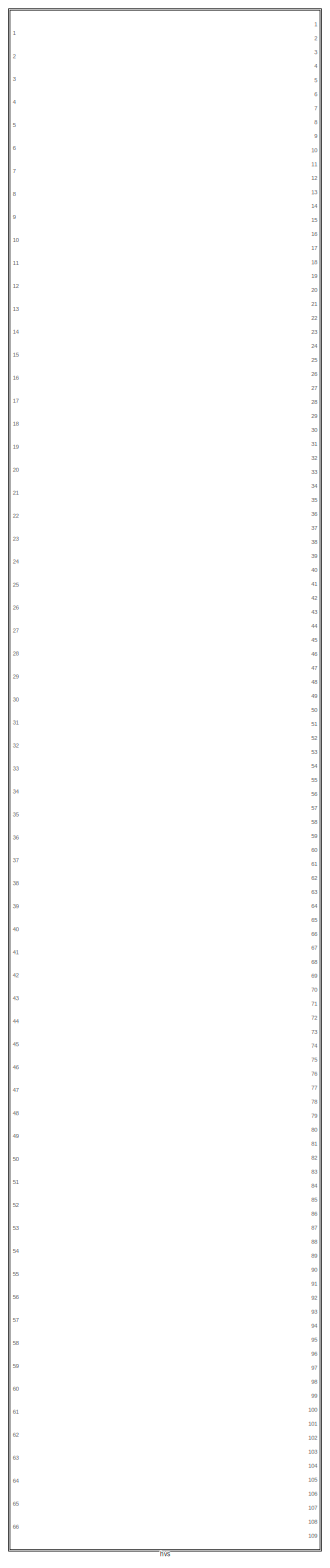
[diagram: root canvas - part 1/1, most of the canvas]
MODEL slx_6a93e0f20630
KIND library
CONFIG AbsTol = auto
CONFIG FixedStep = auto
CONFIG MaxStep = auto
CONFIG MinStep = auto
CONFIG RelTol = 1e-3
CONFIG SampleTimeConstraint = Unconstrained
CONFIG Solver = ode45
CONFIG SolverMode = Auto
CONFIG SolverName = ode45
CONFIG StartTime = 0.0
CONFIG StopTime = 10.0
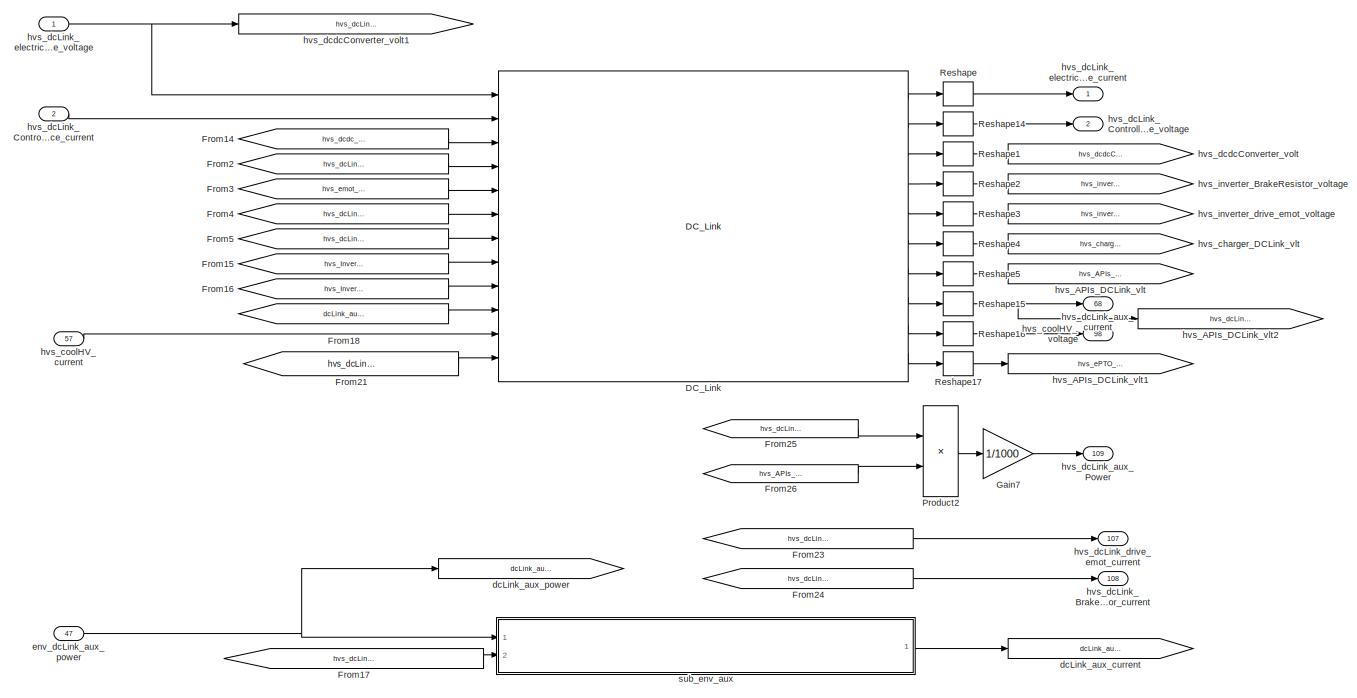
[diagram: hvs - part 1/8, full width, top band]
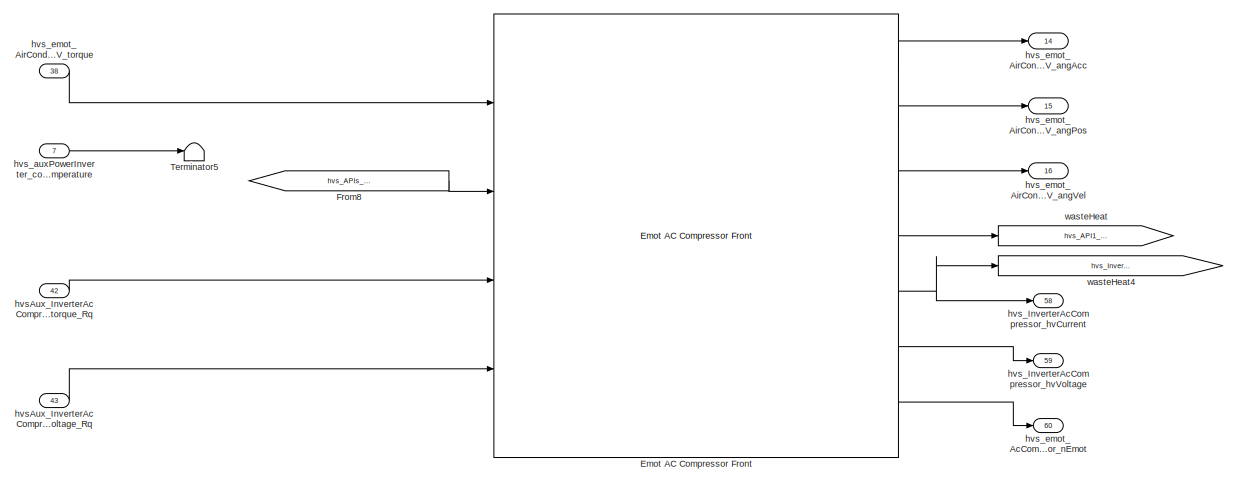
[diagram: hvs - part 2/8, full width, top band]
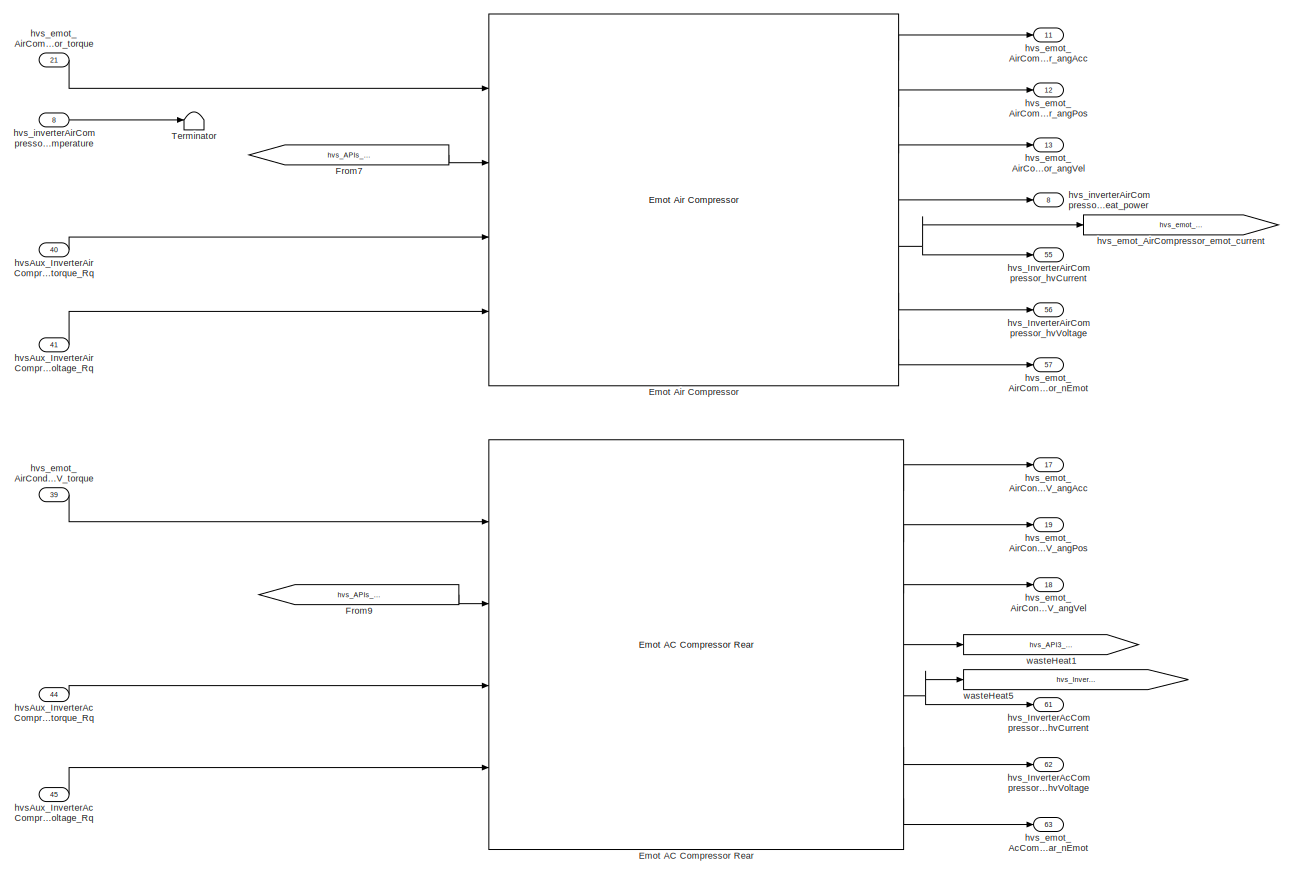
[diagram: hvs - part 3/8, full width, top band]
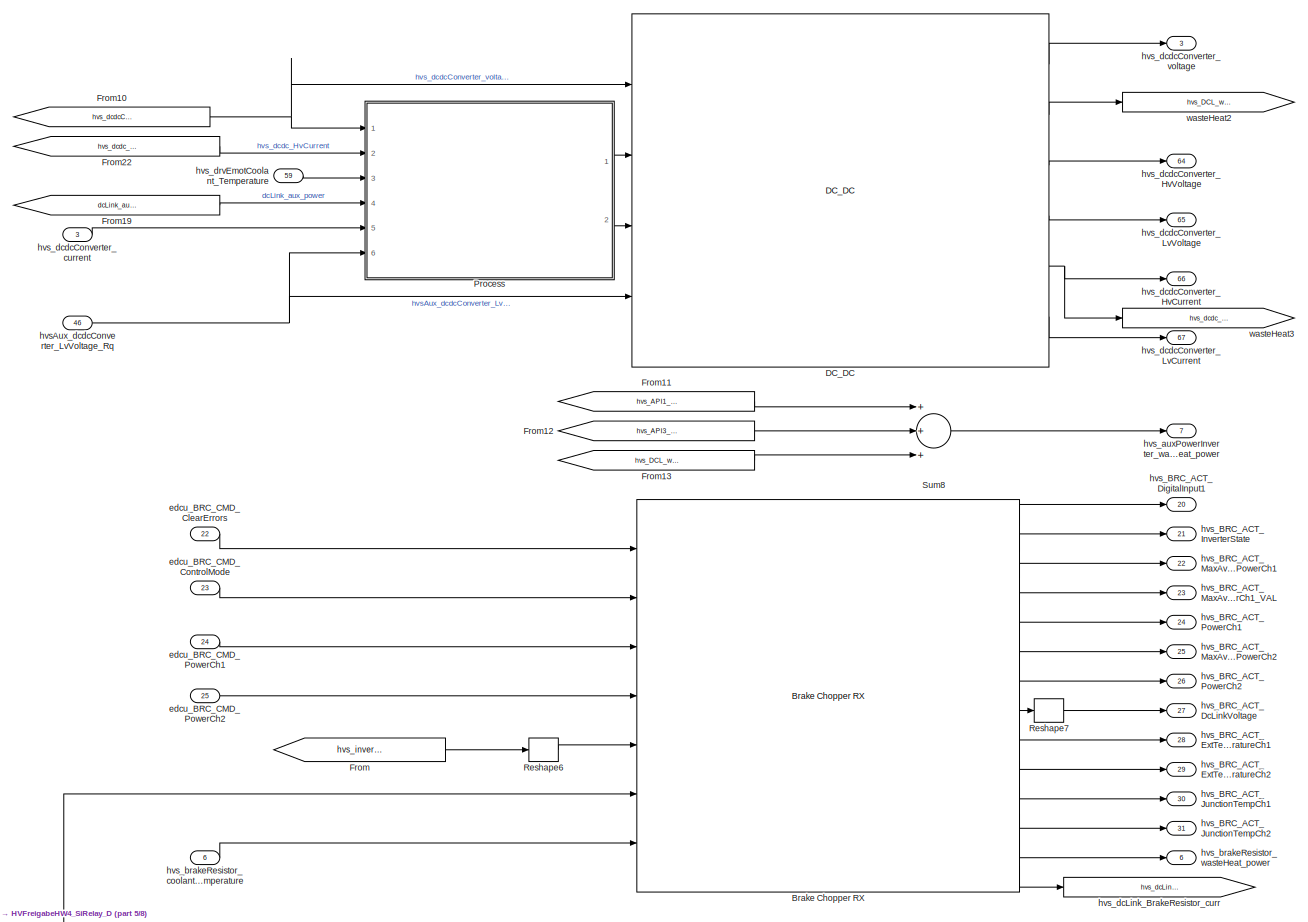
[diagram: hvs - part 4/8, full width, middle band]
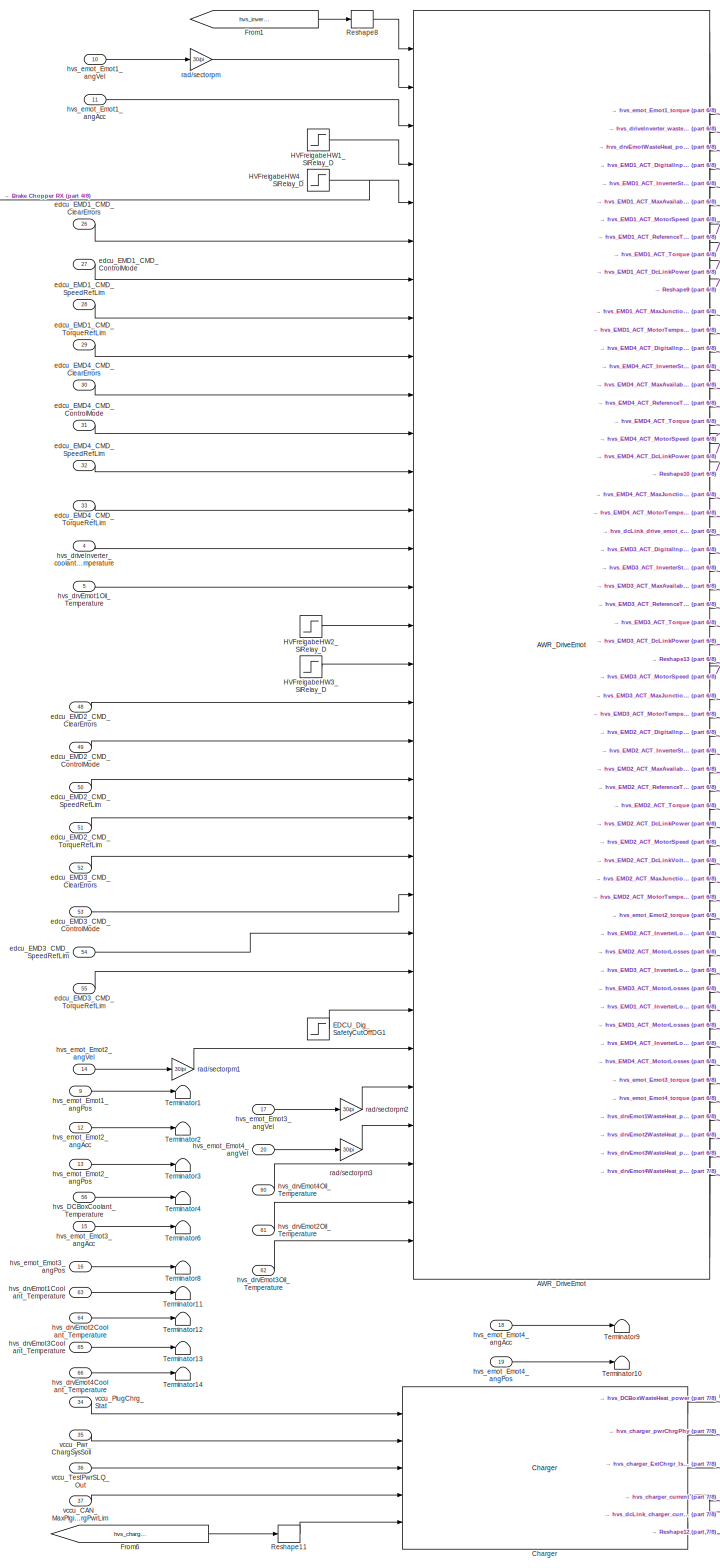
[diagram: hvs - part 5/8, bottom center region]
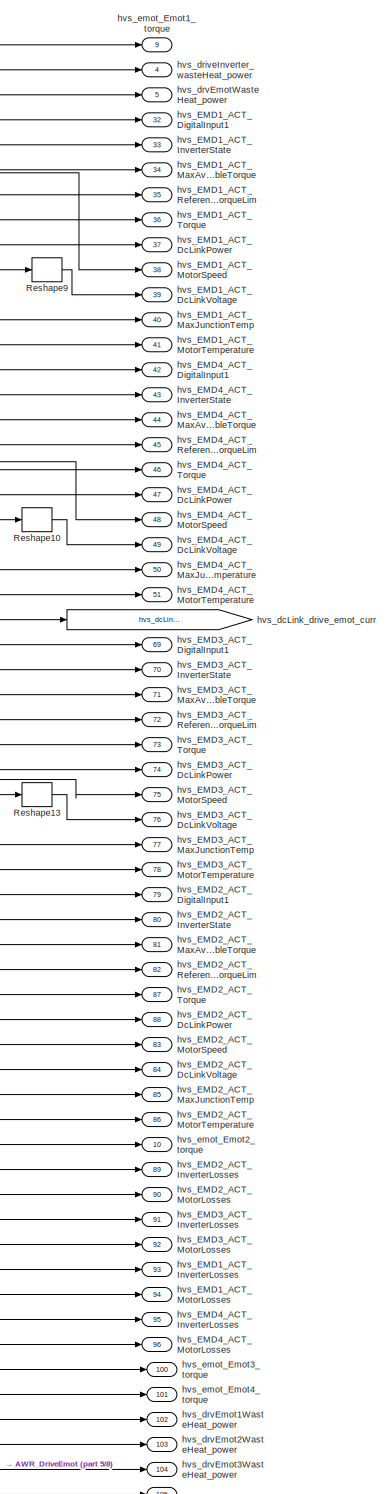
[diagram: hvs - part 6/8, bottom right region]
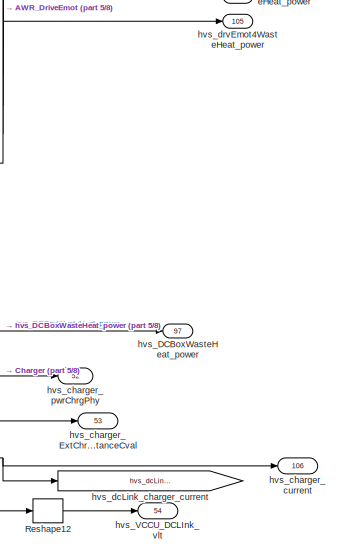
[diagram: hvs - part 7/8, bottom right region]
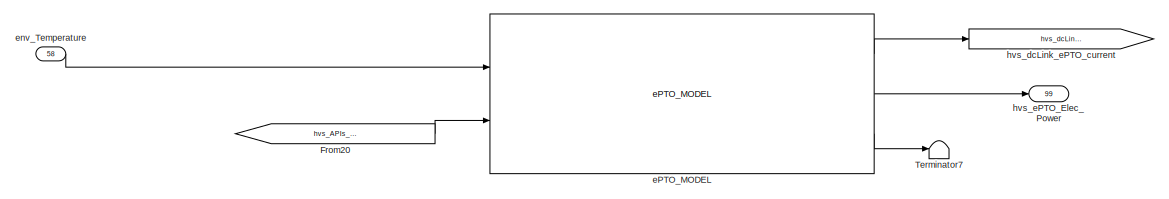
[diagram: hvs - part 8/8, full width, bottom band]
BLOCK [SubSystem] hvs
  Ports = [66, 109]
  RequestExecContextInheritance = off
  Variant = off
BLOCK [Reference] hvs/AWR_DriveEmot  REF=Energy_converter_Electrical_to_Mechanical/AWR_DriveEmot
  Ports = [32, 59]
  SourceBlock = Energy_converter_Electrical_to_Mechanical/AWR_DriveEmot
  SourceType = SubSystem
BLOCK [Reference] hvs/Brake Chopper RX  REF=Energy_converter_Electrical_to_Thermal/Brake Chopper RX
  Ports = [7, 14]
  SourceBlock = Energy_converter_Electrical_to_Thermal/Brake Chopper RX
  SourceType = SubSystem
BLOCK [Reference] hvs/Charger  REF=Electrical_charger/Charger
  Ports = [5, 5]
  SourceBlock = Electrical_charger/Charger
  SourceType = SubSystem
BLOCK [Reference] hvs/DC_DC  REF=Electrical_converter/DC_DC
  Ports = [4, 6]
  SourceBlock = Electrical_converter/DC_DC
  SourceType = SubSystem
BLOCK [Reference] hvs/DC_Link  REF=Powernet/DC_Link
  Ports = [12, 10]
  SourceBlock = Powernet/DC_Link
  SourceType = SubSystem
BLOCK [Step] hvs/EDCU_Dig_SafetyCutOffDG1
  Time = 0.812
BLOCK [Reference] hvs/Emot AC Compressor Front  REF=Energy_converter_Electrical_to_Mechanical/Emot AC Compressor Front
  Ports = [4, 7]
  SourceBlock = Energy_converter_Electrical_to_Mechanical/Emot AC Compressor Front
  SourceType = SubSystem
BLOCK [Reference] hvs/Emot AC Compressor Rear  REF=Energy_converter_Electrical_to_Mechanical/Emot AC Compressor Rear
  Ports = [4, 7]
  SourceBlock = Energy_converter_Electrical_to_Mechanical/Emot AC Compressor Rear
  SourceType = SubSystem
BLOCK [Reference] hvs/Emot Air Compressor  REF=Energy_converter_Electrical_to_Mechanical/Emot Air Compressor
  Ports = [4, 7]
  SourceBlock = Energy_converter_Electrical_to_Mechanical/Emot Air Compressor
  SourceType = SubSystem
BLOCK [From] hvs/From
  GotoTag = hvs_inverter_BrakeResistor_voltage
BLOCK [From] hvs/From1
  GotoTag = hvs_inverter_drive_emot_voltage
BLOCK [From] hvs/From10
  GotoTag = hvs_dcdcConverter_voltage
BLOCK [From] hvs/From11
  GotoTag = hvs_API1_wasteHeat_power
BLOCK [From] hvs/From12
  GotoTag = hvs_API3_wasteHeat_power
BLOCK [From] hvs/From13
  GotoTag = hvs_DCL_wasteHeat_power
BLOCK [From] hvs/From14
  GotoTag = hvs_dcdc_current
BLOCK [From] hvs/From15
  GotoTag = hvs_InverterAcCompressor_hvCurrent
BLOCK [From] hvs/From16
  GotoTag = hvs_InverterAcCompressorRear_hvCurrent
BLOCK [From] hvs/From17
  GotoTag = hvs_dcLink_electricalEnergyStorage_voltage
BLOCK [From] hvs/From18
  GotoTag = dcLink_aux_current
BLOCK [From] hvs/From19
  GotoTag = dcLink_aux_power
BLOCK [From] hvs/From2
  GotoTag = hvs_dcLink_drive_emot_current
BLOCK [From] hvs/From20
  GotoTag = hvs_APIs_DCLink_vlt
BLOCK [From] hvs/From21
  GotoTag = hvs_dcLink_ePTO_current
BLOCK [From] hvs/From22
  GotoTag = hvs_dcdc_current
BLOCK [From] hvs/From23
  GotoTag = hvs_dcLink_drive_emot_current
BLOCK [From] hvs/From24
  GotoTag = hvs_dcLink_BrakeResistor_current
BLOCK [From] hvs/From25
  GotoTag = hvs_dcLink_aux_current
BLOCK [From] hvs/From26
  GotoTag = hvs_APIs_DCLink_vlt
BLOCK [From] hvs/From3
  GotoTag = hvs_emot_AirCompressor_emot_current
BLOCK [From] hvs/From4
  GotoTag = hvs_dcLink_BrakeResistor_current
BLOCK [From] hvs/From5
  GotoTag = hvs_dcLink_charger_current
BLOCK [From] hvs/From6
  GotoTag = hvs_charger_DCLink_vlt
BLOCK [From] hvs/From7
  GotoTag = hvs_APIs_DCLink_vlt
BLOCK [From] hvs/From8
  GotoTag = hvs_APIs_DCLink_vlt
BLOCK [From] hvs/From9
  GotoTag = hvs_APIs_DCLink_vlt
BLOCK [Gain] hvs/Gain7
  Gain = 1/1000
  OutDataTypeStr = Inherit: Inherit via internal rule
  ParamDataTypeStr = Inherit: Inherit via internal rule
  SaturateOnIntegerOverflow = off
BLOCK [Step] hvs/HVFreigabeHW1_SiRelay_D
  Time = 5.502
BLOCK [Step] hvs/HVFreigabeHW2_SiRelay_D
  Time = 5.502
BLOCK [Step] hvs/HVFreigabeHW3_SiRelay_D
  Time = 5.502
BLOCK [Step] hvs/HVFreigabeHW4_SiRelay_D
  Time = 5.502
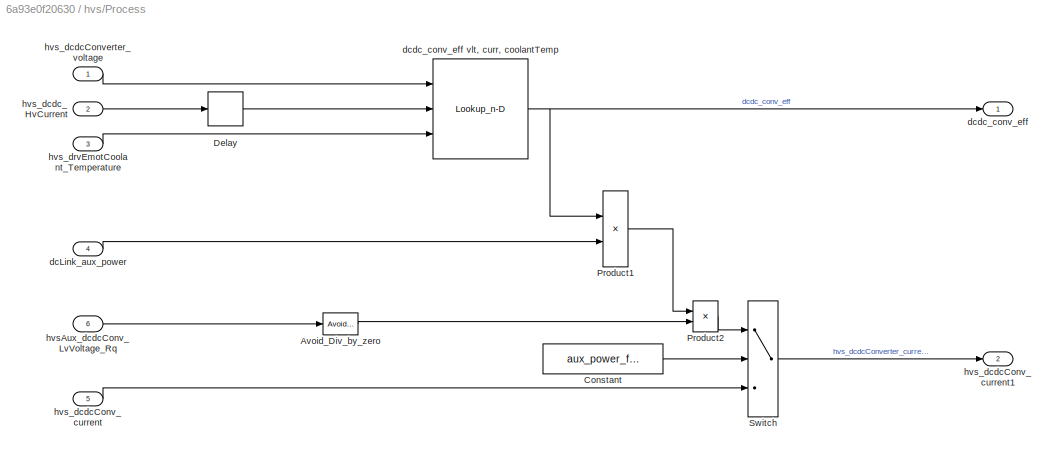
BLOCK [SubSystem] hvs/Process
  Ports = [6, 2]
  RequestExecContextInheritance = off
  Variant = off
BLOCK [Reference] hvs/Process/Avoid_Div_by_zero  REF=Electrical_converter/DC_DC/Avoid_Div_by_zero
  Ports = [1, 1]
  SourceBlock = Electrical_converter/DC_DC/Avoid_Div_by_zero
  SourceType = SubSystem
BLOCK [Constant] hvs/Process/Constant
  Value = aux_power_flag
BLOCK [Delay] hvs/Process/Delay
  DelayLength = 1
  InitialCondition = 0
  InputPortMap = u0
  Ports = [1, 1]
BLOCK [Product] hvs/Process/Product1
  InputSameDT = off
  Inputs = **
  OutDataTypeStr = Inherit: Inherit via internal rule
  Ports = [2, 1]
  SaturateOnIntegerOverflow = off
BLOCK [Product] hvs/Process/Product2
  InputSameDT = off
  Inputs = **
  OutDataTypeStr = Inherit: Inherit via internal rule
  Ports = [2, 1]
  SaturateOnIntegerOverflow = off
BLOCK [Switch] hvs/Process/Switch
  InputSameDT = off
  SaturateOnIntegerOverflow = off
  Threshold = 0.5
BLOCK [Inport] hvs/Process/dcLink_aux_power
  IconDisplay = Port number
  Port = 4
BLOCK [Outport] hvs/Process/dcdc_conv_eff
  IconDisplay = Port number
BLOCK [Lookup_n-D] hvs/Process/dcdc_conv_eff vlt, curr, coolantTemp
  BreakpointsForDimension1 = dcdc_effmap_vlt_1stD
  BreakpointsForDimension2 = dcdc_effmap_cur_2ndD
  BreakpointsForDimension3 = dcdc_effmap_cooltemp_3rdD
  ExtrapMethod = Clip
  NumberOfTableDimensions = 3
  Ports = [3, 1]
  RndMeth = Simplest
  Table = dcdc_effmap
BLOCK [Inport] hvs/Process/hvsAux_dcdcConv_LvVoltage_Rq
  IconDisplay = Port number
  Port = 6
BLOCK [Inport] hvs/Process/hvs_dcdcConv_current
  IconDisplay = Port number
  Port = 5
BLOCK [Outport] hvs/Process/hvs_dcdcConv_current1
  IconDisplay = Port number
  Port = 2
BLOCK [Inport] hvs/Process/hvs_dcdcConverter_voltage
  IconDisplay = Port number
BLOCK [Inport] hvs/Process/hvs_dcdc_HvCurrent
  IconDisplay = Port number
  Port = 2
BLOCK [Inport] hvs/Process/hvs_drvEmotCoolant_Temperature
  IconDisplay = Port number
  Port = 3
BLOCK [Product] hvs/Product2
  InputSameDT = off
  Inputs = **
  OutDataTypeStr = Inherit: Inherit via internal rule
  Ports = [2, 1]
  SaturateOnIntegerOverflow = off
BLOCK [Reshape] hvs/Reshape
  Ports = [1, 1]
BLOCK [Reshape] hvs/Reshape1
  Ports = [1, 1]
BLOCK [Reshape] hvs/Reshape10
  Ports = [1, 1]
BLOCK [Reshape] hvs/Reshape11
  Ports = [1, 1]
BLOCK [Reshape] hvs/Reshape12
  Ports = [1, 1]
BLOCK [Reshape] hvs/Reshape13
  Ports = [1, 1]
BLOCK [Reshape] hvs/Reshape14
  Ports = [1, 1]
BLOCK [Reshape] hvs/Reshape15
  Ports = [1, 1]
BLOCK [Reshape] hvs/Reshape16
  Ports = [1, 1]
BLOCK [Reshape] hvs/Reshape17
  Ports = [1, 1]
BLOCK [Reshape] hvs/Reshape2
  Ports = [1, 1]
BLOCK [Reshape] hvs/Reshape3
  Ports = [1, 1]
BLOCK [Reshape] hvs/Reshape4
  Ports = [1, 1]
BLOCK [Reshape] hvs/Reshape5
  Ports = [1, 1]
BLOCK [Reshape] hvs/Reshape6
  Ports = [1, 1]
BLOCK [Reshape] hvs/Reshape7
  Ports = [1, 1]
BLOCK [Reshape] hvs/Reshape8
  Ports = [1, 1]
BLOCK [Reshape] hvs/Reshape9
  Ports = [1, 1]
BLOCK [Sum] hvs/Sum8
  Inputs = +++
  Ports = [3, 1]
BLOCK [Terminator] hvs/Terminator
BLOCK [Terminator] hvs/Terminator1
BLOCK [Terminator] hvs/Terminator10
BLOCK [Terminator] hvs/Terminator11
BLOCK [Terminator] hvs/Terminator12
BLOCK [Terminator] hvs/Terminator13
BLOCK [Terminator] hvs/Terminator14
BLOCK [Terminator] hvs/Terminator2
BLOCK [Terminator] hvs/Terminator3
BLOCK [Terminator] hvs/Terminator4
BLOCK [Terminator] hvs/Terminator5
BLOCK [Terminator] hvs/Terminator6
BLOCK [Terminator] hvs/Terminator7
BLOCK [Terminator] hvs/Terminator8
BLOCK [Terminator] hvs/Terminator9
BLOCK [Goto] hvs/dcLink_aux_current
  GotoTag = dcLink_aux_current
BLOCK [Goto] hvs/dcLink_aux_power
  GotoTag = dcLink_aux_power
BLOCK [Reference] hvs/ePTO_MODEL  REF=ePTO/ePTO_MODEL
  Ports = [2, 3]
  SourceBlock = ePTO/ePTO_MODEL
  SourceType = SubSystem
BLOCK [Inport] hvs/edcu_BRC_CMD_ClearErrors
  IconDisplay = Port number
  Port = 22
BLOCK [Inport] hvs/edcu_BRC_CMD_ControlMode
  IconDisplay = Port number
  Port = 23
BLOCK [Inport] hvs/edcu_BRC_CMD_PowerCh1
  IconDisplay = Port number
  Port = 24
BLOCK [Inport] hvs/edcu_BRC_CMD_PowerCh2
  IconDisplay = Port number
  Port = 25
BLOCK [Inport] hvs/edcu_EMD1_CMD_ClearErrors
  IconDisplay = Port number
  Port = 26
BLOCK [Inport] hvs/edcu_EMD1_CMD_ControlMode
  IconDisplay = Port number
  Port = 27
BLOCK [Inport] hvs/edcu_EMD1_CMD_SpeedRefLim
  IconDisplay = Port number
  Port = 28
BLOCK [Inport] hvs/edcu_EMD1_CMD_TorqueRefLim
  IconDisplay = Port number
  Port = 29
BLOCK [Inport] hvs/edcu_EMD2_CMD_ClearErrors
  IconDisplay = Port number
  Port = 48
BLOCK [Inport] hvs/edcu_EMD2_CMD_ControlMode
  IconDisplay = Port number
  Port = 49
BLOCK [Inport] hvs/edcu_EMD2_CMD_SpeedRefLim
  IconDisplay = Port number
  Port = 50
BLOCK [Inport] hvs/edcu_EMD2_CMD_TorqueRefLim
  IconDisplay = Port number
  Port = 51
BLOCK [Inport] hvs/edcu_EMD3_CMD_ClearErrors
  IconDisplay = Port number
  Port = 52
BLOCK [Inport] hvs/edcu_EMD3_CMD_ControlMode
  IconDisplay = Port number
  Port = 53
BLOCK [Inport] hvs/edcu_EMD3_CMD_SpeedRefLim
  IconDisplay = Port number
  Port = 54
BLOCK [Inport] hvs/edcu_EMD3_CMD_TorqueRefLim
  IconDisplay = Port number
  Port = 55
BLOCK [Inport] hvs/edcu_EMD4_CMD_ClearErrors
  IconDisplay = Port number
  Port = 30
BLOCK [Inport] hvs/edcu_EMD4_CMD_ControlMode
  IconDisplay = Port number
  Port = 31
BLOCK [Inport] hvs/edcu_EMD4_CMD_SpeedRefLim
  IconDisplay = Port number
  Port = 32
BLOCK [Inport] hvs/edcu_EMD4_CMD_TorqueRefLim
  IconDisplay = Port number
  Port = 33
BLOCK [Inport] hvs/env_Temperature
  IconDisplay = Port number
  Port = 58
BLOCK [Inport] hvs/env_dcLink_aux_power
  IconDisplay = Port number
  Port = 47
BLOCK [Inport] hvs/hvsAux_InverterAcCompressorFront_Voltage_Rq
  IconDisplay = Port number
  Port = 43
BLOCK [Inport] hvs/hvsAux_InverterAcCompressorFront_torque_Rq
  IconDisplay = Port number
  Port = 42
BLOCK [Inport] hvs/hvsAux_InverterAcCompressorRear_Voltage_Rq
  IconDisplay = Port number
  Port = 45
BLOCK [Inport] hvs/hvsAux_InverterAcCompressorRear_torque_Rq
  IconDisplay = Port number
  Port = 44
BLOCK [Inport] hvs/hvsAux_InverterAirCompressor_Voltage_Rq
  IconDisplay = Port number
  Port = 41
BLOCK [Inport] hvs/hvsAux_InverterAirCompressor_torque_Rq
  IconDisplay = Port number
  Port = 40
BLOCK [Inport] hvs/hvsAux_dcdcConverter_LvVoltage_Rq
  IconDisplay = Port number
  Port = 46
BLOCK [Goto] hvs/hvs_APIs_DCLink_vlt
  GotoTag = hvs_APIs_DCLink_vlt
BLOCK [Goto] hvs/hvs_APIs_DCLink_vlt1
  GotoTag = hvs_ePTO_DCLink_vlt
BLOCK [Goto] hvs/hvs_APIs_DCLink_vlt2
  GotoTag = hvs_dcLink_aux_current
BLOCK [Outport] hvs/hvs_BRC_ACT_DcLinkVoltage
  IconDisplay = Port number
  Port = 27
BLOCK [Outport] hvs/hvs_BRC_ACT_DigitalInput1
  IconDisplay = Port number
  Port = 20
BLOCK [Outport] hvs/hvs_BRC_ACT_ExtTemperatureCh1
  IconDisplay = Port number
  Port = 28
BLOCK [Outport] hvs/hvs_BRC_ACT_ExtTemperatureCh2
  IconDisplay = Port number
  Port = 29
BLOCK [Outport] hvs/hvs_BRC_ACT_InverterState
  IconDisplay = Port number
  Port = 21
BLOCK [Outport] hvs/hvs_BRC_ACT_JunctionTempCh1
  IconDisplay = Port number
  Port = 30
BLOCK [Outport] hvs/hvs_BRC_ACT_JunctionTempCh2
  IconDisplay = Port number
  Port = 31
BLOCK [Outport] hvs/hvs_BRC_ACT_MaxAvailablePowerCh1
  IconDisplay = Port number
  Port = 22
BLOCK [Outport] hvs/hvs_BRC_ACT_MaxAvailablePowerCh1_VAL
  IconDisplay = Port number
  Port = 23
BLOCK [Outport] hvs/hvs_BRC_ACT_MaxAvailablePowerCh2
  IconDisplay = Port number
  Port = 25
BLOCK [Outport] hvs/hvs_BRC_ACT_PowerCh1
  IconDisplay = Port number
  Port = 24
BLOCK [Outport] hvs/hvs_BRC_ACT_PowerCh2
  IconDisplay = Port number
  Port = 26
BLOCK [Inport] hvs/hvs_DCBoxCoolant_Temperature
  IconDisplay = Port number
  Port = 56
BLOCK [Outport] hvs/hvs_DCBoxWasteHeat_power
  IconDisplay = Port number
  Port = 97
BLOCK [Outport] hvs/hvs_EMD1_ACT_DcLinkPower
  IconDisplay = Port number
  Port = 37
BLOCK [Outport] hvs/hvs_EMD1_ACT_DcLinkVoltage
  IconDisplay = Port number
  Port = 39
BLOCK [Outport] hvs/hvs_EMD1_ACT_DigitalInput1
  IconDisplay = Port number
  Port = 32
BLOCK [Outport] hvs/hvs_EMD1_ACT_InverterLosses
  IconDisplay = Port number
  Port = 93
BLOCK [Outport] hvs/hvs_EMD1_ACT_InverterState
  IconDisplay = Port number
  Port = 33
BLOCK [Outport] hvs/hvs_EMD1_ACT_MaxAvailableTorque
  IconDisplay = Port number
  Port = 34
BLOCK [Outport] hvs/hvs_EMD1_ACT_MaxJunctionTemp
  IconDisplay = Port number
  Port = 40
BLOCK [Outport] hvs/hvs_EMD1_ACT_MotorLosses
  IconDisplay = Port number
  Port = 94
BLOCK [Outport] hvs/hvs_EMD1_ACT_MotorSpeed
  IconDisplay = Port number
  Port = 38
BLOCK [Outport] hvs/hvs_EMD1_ACT_MotorTemperature
  IconDisplay = Port number
  Port = 41
BLOCK [Outport] hvs/hvs_EMD1_ACT_ReferenceTorqueLim
  IconDisplay = Port number
  Port = 35
BLOCK [Outport] hvs/hvs_EMD1_ACT_Torque
  IconDisplay = Port number
  Port = 36
BLOCK [Outport] hvs/hvs_EMD2_ACT_DcLinkPower
  IconDisplay = Port number
  Port = 88
BLOCK [Outport] hvs/hvs_EMD2_ACT_DcLinkVoltage
  IconDisplay = Port number
  Port = 84
BLOCK [Outport] hvs/hvs_EMD2_ACT_DigitalInput1
  IconDisplay = Port number
  Port = 79
BLOCK [Outport] hvs/hvs_EMD2_ACT_InverterLosses
  IconDisplay = Port number
  Port = 89
BLOCK [Outport] hvs/hvs_EMD2_ACT_InverterState
  IconDisplay = Port number
  Port = 80
BLOCK [Outport] hvs/hvs_EMD2_ACT_MaxAvailableTorque
  IconDisplay = Port number
  Port = 81
BLOCK [Outport] hvs/hvs_EMD2_ACT_MaxJunctionTemp
  IconDisplay = Port number
  Port = 85
BLOCK [Outport] hvs/hvs_EMD2_ACT_MotorLosses
  IconDisplay = Port number
  Port = 90
BLOCK [Outport] hvs/hvs_EMD2_ACT_MotorSpeed
  IconDisplay = Port number
  Port = 83
BLOCK [Outport] hvs/hvs_EMD2_ACT_MotorTemperature
  IconDisplay = Port number
  Port = 86
BLOCK [Outport] hvs/hvs_EMD2_ACT_ReferenceTorqueLim
  IconDisplay = Port number
  Port = 82
BLOCK [Outport] hvs/hvs_EMD2_ACT_Torque
  IconDisplay = Port number
  Port = 87
BLOCK [Outport] hvs/hvs_EMD3_ACT_DcLinkPower
  IconDisplay = Port number
  Port = 74
BLOCK [Outport] hvs/hvs_EMD3_ACT_DcLinkVoltage
  IconDisplay = Port number
  Port = 76
BLOCK [Outport] hvs/hvs_EMD3_ACT_DigitalInput1
  IconDisplay = Port number
  Port = 69
BLOCK [Outport] hvs/hvs_EMD3_ACT_InverterLosses
  IconDisplay = Port number
  Port = 91
BLOCK [Outport] hvs/hvs_EMD3_ACT_InverterState
  IconDisplay = Port number
  Port = 70
BLOCK [Outport] hvs/hvs_EMD3_ACT_MaxAvailableTorque
  IconDisplay = Port number
  Port = 71
BLOCK [Outport] hvs/hvs_EMD3_ACT_MaxJunctionTemp
  IconDisplay = Port number
  Port = 77
BLOCK [Outport] hvs/hvs_EMD3_ACT_MotorLosses
  IconDisplay = Port number
  Port = 92
BLOCK [Outport] hvs/hvs_EMD3_ACT_MotorSpeed
  IconDisplay = Port number
  Port = 75
BLOCK [Outport] hvs/hvs_EMD3_ACT_MotorTemperature
  IconDisplay = Port number
  Port = 78
BLOCK [Outport] hvs/hvs_EMD3_ACT_ReferenceTorqueLim
  IconDisplay = Port number
  Port = 72
BLOCK [Outport] hvs/hvs_EMD3_ACT_Torque
  IconDisplay = Port number
  Port = 73
BLOCK [Outport] hvs/hvs_EMD4_ACT_DcLinkPower
  IconDisplay = Port number
  Port = 47
BLOCK [Outport] hvs/hvs_EMD4_ACT_DcLinkVoltage
  IconDisplay = Port number
  Port = 49
BLOCK [Outport] hvs/hvs_EMD4_ACT_DigitalInput1
  IconDisplay = Port number
  Port = 42
BLOCK [Outport] hvs/hvs_EMD4_ACT_InverterLosses
  IconDisplay = Port number
  Port = 95
BLOCK [Outport] hvs/hvs_EMD4_ACT_InverterState
  IconDisplay = Port number
  Port = 43
BLOCK [Outport] hvs/hvs_EMD4_ACT_MaxAvailableTorque
  IconDisplay = Port number
  Port = 44
BLOCK [Outport] hvs/hvs_EMD4_ACT_MaxJunctionTemperature
  IconDisplay = Port number
  Port = 50
BLOCK [Outport] hvs/hvs_EMD4_ACT_MotorLosses
  IconDisplay = Port number
  Port = 96
BLOCK [Outport] hvs/hvs_EMD4_ACT_MotorSpeed
  IconDisplay = Port number
  Port = 48
BLOCK [Outport] hvs/hvs_EMD4_ACT_MotorTemperature
  IconDisplay = Port number
  Port = 51
BLOCK [Outport] hvs/hvs_EMD4_ACT_ReferenceTorqueLim
  IconDisplay = Port number
  Port = 45
BLOCK [Outport] hvs/hvs_EMD4_ACT_Torque
  IconDisplay = Port number
  Port = 46
BLOCK [Outport] hvs/hvs_InverterAcCompressorRear_hvCurrent
  IconDisplay = Port number
  Port = 61
BLOCK [Outport] hvs/hvs_InverterAcCompressorRear_hvVoltage
  IconDisplay = Port number
  Port = 62
BLOCK [Outport] hvs/hvs_InverterAcCompressor_hvCurrent
  IconDisplay = Port number
  Port = 58
BLOCK [Outport] hvs/hvs_InverterAcCompressor_hvVoltage
  IconDisplay = Port number
  Port = 59
BLOCK [Outport] hvs/hvs_InverterAirCompressor_hvCurrent
  IconDisplay = Port number
  Port = 55
BLOCK [Outport] hvs/hvs_InverterAirCompressor_hvVoltage
  IconDisplay = Port number
  Port = 56
BLOCK [Outport] hvs/hvs_VCCU_DCLInk_vlt
  IconDisplay = Port number
  Port = 54
BLOCK [Inport] hvs/hvs_auxPowerInverter_coolant_temperature
  IconDisplay = Port number
  Port = 7
BLOCK [Outport] hvs/hvs_auxPowerInverter_wasteHeat_power
  IconDisplay = Port number
  Port = 7
BLOCK [Inport] hvs/hvs_brakeResistor_coolant_temperature
  IconDisplay = Port number
  Port = 6
BLOCK [Outport] hvs/hvs_brakeResistor_wasteHeat_power
  IconDisplay = Port number
  Port = 6
BLOCK [Goto] hvs/hvs_charger_DCLink_vlt
  GotoTag = hvs_charger_DCLink_vlt
BLOCK [Outport] hvs/hvs_charger_ExtChrgr_Isolation_ResistanceCval
  IconDisplay = Port number
  Port = 53
BLOCK [Outport] hvs/hvs_charger_current
  IconDisplay = Port number
  Port = 106
BLOCK [Outport] hvs/hvs_charger_pwrChrgPhy
  IconDisplay = Port number
  Port = 52
BLOCK [Inport] hvs/hvs_coolHV_current
  IconDisplay = Port number
  Port = 57
BLOCK [Outport] hvs/hvs_coolHV_voltage
  IconDisplay = Port number
  Port = 98
BLOCK [Goto] hvs/hvs_dcLink_BrakeResistor_curr
  GotoTag = hvs_dcLink_BrakeResistor_current
BLOCK [Outport] hvs/hvs_dcLink_BrakeResistor_current
  IconDisplay = Port number
  Port = 108
BLOCK [Inport] hvs/hvs_dcLink_ControllableEnergySource_current
  IconDisplay = Port number
  Port = 2
BLOCK [Outport] hvs/hvs_dcLink_ControllableEnergySource_voltage
  IconDisplay = Port number
  Port = 2
BLOCK [Outport] hvs/hvs_dcLink_aux_Power
  IconDisplay = Port number
  Port = 109
BLOCK [Outport] hvs/hvs_dcLink_aux_current
  IconDisplay = Port number
  Port = 68
BLOCK [Goto] hvs/hvs_dcLink_charger_current
  GotoTag = hvs_dcLink_charger_current
BLOCK [Goto] hvs/hvs_dcLink_drive_emot_curr
  GotoTag = hvs_dcLink_drive_emot_current
BLOCK [Outport] hvs/hvs_dcLink_drive_emot_current
  IconDisplay = Port number
  Port = 107
BLOCK [Goto] hvs/hvs_dcLink_ePTO_current
  GotoTag = hvs_dcLink_ePTO_current
BLOCK [Outport] hvs/hvs_dcLink_electricalEnergyStorage_current
  IconDisplay = Port number
BLOCK [Inport] hvs/hvs_dcLink_electricalEnergyStorage_voltage
  IconDisplay = Port number
BLOCK [Outport] hvs/hvs_dcdcConverter_HvCurrent
  IconDisplay = Port number
  Port = 66
BLOCK [Outport] hvs/hvs_dcdcConverter_HvVoltage
  IconDisplay = Port number
  Port = 64
BLOCK [Outport] hvs/hvs_dcdcConverter_LvCurrent
  IconDisplay = Port number
  Port = 67
BLOCK [Outport] hvs/hvs_dcdcConverter_LvVoltage
  IconDisplay = Port number
  Port = 65
BLOCK [Inport] hvs/hvs_dcdcConverter_current
  IconDisplay = Port number
  Port = 3
BLOCK [Goto] hvs/hvs_dcdcConverter_volt
  GotoTag = hvs_dcdcConverter_voltage
BLOCK [Goto] hvs/hvs_dcdcConverter_volt1
  GotoTag = hvs_dcLink_electricalEnergyStorage_voltage
BLOCK [Outport] hvs/hvs_dcdcConverter_voltage
  IconDisplay = Port number
  Port = 3
BLOCK [Inport] hvs/hvs_driveInverter_coolant_temperature
  IconDisplay = Port number
  Port = 4
BLOCK [Outport] hvs/hvs_driveInverter_wasteHeat_power
  IconDisplay = Port number
  Port = 4
BLOCK [Inport] hvs/hvs_drvEmot1Coolant_Temperature
  IconDisplay = Port number
  Port = 63
BLOCK [Inport] hvs/hvs_drvEmot1Oil_Temperature
  IconDisplay = Port number
  Port = 5
BLOCK [Outport] hvs/hvs_drvEmot1WasteHeat_power
  IconDisplay = Port number
  Port = 102
BLOCK [Inport] hvs/hvs_drvEmot2Coolant_Temperature
  IconDisplay = Port number
  Port = 64
BLOCK [Inport] hvs/hvs_drvEmot2Oil_Temperature
  IconDisplay = Port number
  Port = 61
BLOCK [Outport] hvs/hvs_drvEmot2WasteHeat_power
  IconDisplay = Port number
  Port = 103
BLOCK [Inport] hvs/hvs_drvEmot3Coolant_Temperature
  IconDisplay = Port number
  Port = 65
BLOCK [Inport] hvs/hvs_drvEmot3Oil_Temperature
  IconDisplay = Port number
  Port = 62
BLOCK [Outport] hvs/hvs_drvEmot3WasteHeat_power
  IconDisplay = Port number
  Port = 104
BLOCK [Inport] hvs/hvs_drvEmot4Coolant_Temperature
  IconDisplay = Port number
  Port = 66
BLOCK [Inport] hvs/hvs_drvEmot4Oil_Temperature
  IconDisplay = Port number
  Port = 60
BLOCK [Outport] hvs/hvs_drvEmot4WasteHeat_power
  IconDisplay = Port number
  Port = 105
BLOCK [Inport] hvs/hvs_drvEmotCoolant_Temperature
  IconDisplay = Port number
  Port = 59
BLOCK [Outport] hvs/hvs_drvEmotWasteHeat_power
  IconDisplay = Port number
  Port = 5
BLOCK [Outport] hvs/hvs_ePTO_Elec_Power
  IconDisplay = Port number
  Port = 99
BLOCK [Outport] hvs/hvs_emot_AcCompressorRear_nEmot
  IconDisplay = Port number
  Port = 63
BLOCK [Outport] hvs/hvs_emot_AcCompressor_nEmot
  IconDisplay = Port number
  Port = 60
BLOCK [Outport] hvs/hvs_emot_AirCompressor_angAcc
  IconDisplay = Port number
  Port = 11
BLOCK [Outport] hvs/hvs_emot_AirCompressor_angPos
  IconDisplay = Port number
  Port = 12
BLOCK [Outport] hvs/hvs_emot_AirCompressor_angVel
  IconDisplay = Port number
  Port = 13
BLOCK [Goto] hvs/hvs_emot_AirCompressor_emot_current
  GotoTag = hvs_emot_AirCompressor_emot_current
BLOCK [Outport] hvs/hvs_emot_AirCompressor_nEmot
  IconDisplay = Port number
  Port = 57
BLOCK [Inport] hvs/hvs_emot_AirCompressor_torque
  IconDisplay = Port number
  Port = 21
BLOCK [Outport] hvs/hvs_emot_AirCondFrontHV_angAcc
  IconDisplay = Port number
  Port = 14
BLOCK [Outport] hvs/hvs_emot_AirCondFrontHV_angPos
  IconDisplay = Port number
  Port = 15
BLOCK [Outport] hvs/hvs_emot_AirCondFrontHV_angVel
  IconDisplay = Port number
  Port = 16
BLOCK [Inport] hvs/hvs_emot_AirCondFrontHV_torque
  IconDisplay = Port number
  Port = 38
BLOCK [Outport] hvs/hvs_emot_AirCondRearHV_angAcc
  IconDisplay = Port number
  Port = 17
BLOCK [Outport] hvs/hvs_emot_AirCondRearHV_angPos
  IconDisplay = Port number
  Port = 19
BLOCK [Outport] hvs/hvs_emot_AirCondRearHV_angVel
  IconDisplay = Port number
  Port = 18
BLOCK [Inport] hvs/hvs_emot_AirCondRearHV_torque
  IconDisplay = Port number
  Port = 39
BLOCK [Inport] hvs/hvs_emot_Emot1_angAcc
  IconDisplay = Port number
  Port = 11
BLOCK [Inport] hvs/hvs_emot_Emot1_angPos
  IconDisplay = Port number
  Port = 9
BLOCK [Inport] hvs/hvs_emot_Emot1_angVel
  IconDisplay = Port number
  Port = 10
BLOCK [Outport] hvs/hvs_emot_Emot1_torque
  IconDisplay = Port number
  Port = 9
BLOCK [Inport] hvs/hvs_emot_Emot2_angAcc
  IconDisplay = Port number
  Port = 12
BLOCK [Inport] hvs/hvs_emot_Emot2_angPos
  IconDisplay = Port number
  Port = 13
BLOCK [Inport] hvs/hvs_emot_Emot2_angVel
  IconDisplay = Port number
  Port = 14
BLOCK [Outport] hvs/hvs_emot_Emot2_torque
  IconDisplay = Port number
  Port = 10
BLOCK [Inport] hvs/hvs_emot_Emot3_angAcc
  IconDisplay = Port number
  Port = 15
BLOCK [Inport] hvs/hvs_emot_Emot3_angPos
  IconDisplay = Port number
  Port = 16
BLOCK [Inport] hvs/hvs_emot_Emot3_angVel
  IconDisplay = Port number
  Port = 17
BLOCK [Outport] hvs/hvs_emot_Emot3_torque
  IconDisplay = Port number
  Port = 100
BLOCK [Inport] hvs/hvs_emot_Emot4_angAcc
  IconDisplay = Port number
  Port = 18
BLOCK [Inport] hvs/hvs_emot_Emot4_angPos
  IconDisplay = Port number
  Port = 19
BLOCK [Inport] hvs/hvs_emot_Emot4_angVel
  IconDisplay = Port number
  Port = 20
BLOCK [Outport] hvs/hvs_emot_Emot4_torque
  IconDisplay = Port number
  Port = 101
BLOCK [Inport] hvs/hvs_inverterAirCompressor_coolant_temperature
  IconDisplay = Port number
  Port = 8
BLOCK [Outport] hvs/hvs_inverterAirCompressor_wasteHeat_power
  IconDisplay = Port number
  Port = 8
BLOCK [Goto] hvs/hvs_inverter_BrakeResistor_voltage
  GotoTag = hvs_inverter_BrakeResistor_voltage
BLOCK [Goto] hvs/hvs_inverter_drive_emot_voltage
  GotoTag = hvs_inverter_drive_emot_voltage
BLOCK [Gain] hvs/rad//sectorpm
  Gain = 30/pi
  OutDataTypeStr = Inherit: Inherit via internal rule
  ParamDataTypeStr = Inherit: Inherit via internal rule
  SaturateOnIntegerOverflow = off
BLOCK [Gain] hvs/rad//sectorpm1
  Gain = 30/pi
  OutDataTypeStr = Inherit: Inherit via internal rule
  ParamDataTypeStr = Inherit: Inherit via internal rule
  SaturateOnIntegerOverflow = off
BLOCK [Gain] hvs/rad//sectorpm2
  Gain = 30/pi
  OutDataTypeStr = Inherit: Inherit via internal rule
  ParamDataTypeStr = Inherit: Inherit via internal rule
  SaturateOnIntegerOverflow = off
BLOCK [Gain] hvs/rad//sectorpm3
  Gain = 30/pi
  OutDataTypeStr = Inherit: Inherit via internal rule
  ParamDataTypeStr = Inherit: Inherit via internal rule
  SaturateOnIntegerOverflow = off
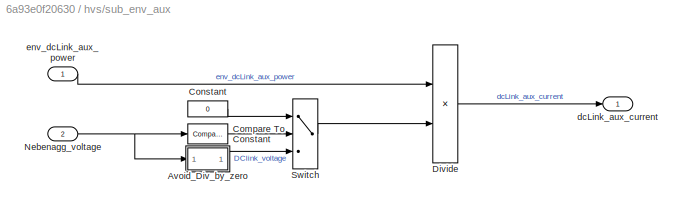
BLOCK [SubSystem] hvs/sub_env_aux
  Ports = [2, 1]
  RequestExecContextInheritance = off
  Variant = off
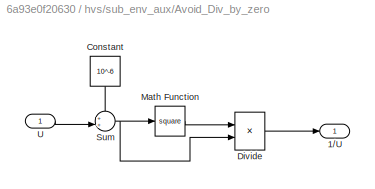
BLOCK [SubSystem] hvs/sub_env_aux/Avoid_Div_by_zero
  Ports = [1, 1]
  RequestExecContextInheritance = off
  Variant = off
BLOCK [Outport] hvs/sub_env_aux/Avoid_Div_by_zero/1//U
  IconDisplay = Port number
BLOCK [Constant] hvs/sub_env_aux/Avoid_Div_by_zero/Constant
  Value = 10^-6
BLOCK [Product] hvs/sub_env_aux/Avoid_Div_by_zero/Divide
  InputSameDT = off
  Inputs = /*
  OutDataTypeStr = Inherit: Inherit via internal rule
  Ports = [2, 1]
  RndMeth = Floor
  SaturateOnIntegerOverflow = off
BLOCK [Math] hvs/sub_env_aux/Avoid_Div_by_zero/Math Function
  Operator = square
  Ports = [1, 1]
BLOCK [Sum] hvs/sub_env_aux/Avoid_Div_by_zero/Sum
  IconShape = round
  InputSameDT = off
  Inputs = ++|
  OutDataTypeStr = Inherit: Inherit via internal rule
  Ports = [2, 1]
  SaturateOnIntegerOverflow = off
BLOCK [Inport] hvs/sub_env_aux/Avoid_Div_by_zero/U
  IconDisplay = Port number
BLOCK [Reference] hvs/sub_env_aux/Compare To Constant  REF=simulink/Logic and Bit
Operations/Compare
To Constant
  Ports = [1, 1]
  SourceBlock = simulink/Logic and Bit\nOperations/Compare\nTo Constant
  SourceType = Compare To Constant
BLOCK [Constant] hvs/sub_env_aux/Constant
  Value = 0
BLOCK [Product] hvs/sub_env_aux/Divide
  InputSameDT = off
  OutDataTypeStr = Inherit: Inherit via internal rule
  Ports = [2, 1]
  RndMeth = Floor
  SaturateOnIntegerOverflow = off
BLOCK [Inport] hvs/sub_env_aux/Nebenagg_voltage
  IconDisplay = Port number
  Port = 2
BLOCK [Switch] hvs/sub_env_aux/Switch
  InputSameDT = off
  SaturateOnIntegerOverflow = off
  Threshold = 0.5
BLOCK [Outport] hvs/sub_env_aux/dcLink_aux_current
  IconDisplay = Port number
BLOCK [Inport] hvs/sub_env_aux/env_dcLink_aux_power
  IconDisplay = Port number
BLOCK [Inport] hvs/vccu_CAN_MaxPlginChrgPwrLim
  IconDisplay = Port number
  Port = 37
BLOCK [Inport] hvs/vccu_PlugChrg_Stat
  IconDisplay = Port number
  Port = 34
BLOCK [Inport] hvs/vccu_Pwr_ChargSysSoll
  IconDisplay = Port number
  Port = 35
BLOCK [Inport] hvs/vccu_TestPwrSLQ_Out
  IconDisplay = Port number
  Port = 36
BLOCK [Goto] hvs/wasteHeat
  GotoTag = hvs_API1_wasteHeat_power
BLOCK [Goto] hvs/wasteHeat1
  GotoTag = hvs_API3_wasteHeat_power
BLOCK [Goto] hvs/wasteHeat2
  GotoTag = hvs_DCL_wasteHeat_power
BLOCK [Goto] hvs/wasteHeat3
  GotoTag = hvs_dcdc_current
BLOCK [Goto] hvs/wasteHeat4
  GotoTag = hvs_InverterAcCompressor_hvCurrent
BLOCK [Goto] hvs/wasteHeat5
  GotoTag = hvs_InverterAcCompressorRear_hvCurrent
LINE hvs/AWR_DriveEmot:1 -> hvs/hvs_emot_Emot1_torque:1
LINE hvs/AWR_DriveEmot:10 -> hvs/hvs_EMD1_ACT_MotorSpeed:1
LINE hvs/AWR_DriveEmot:11 -> hvs/Reshape9:1
LINE hvs/AWR_DriveEmot:12 -> hvs/hvs_EMD1_ACT_MaxJunctionTemp:1
LINE hvs/AWR_DriveEmot:13 -> hvs/hvs_EMD1_ACT_MotorTemperature:1
LINE hvs/AWR_DriveEmot:14 -> hvs/hvs_EMD4_ACT_DigitalInput1:1
LINE hvs/AWR_DriveEmot:15 -> hvs/hvs_EMD4_ACT_InverterState:1
LINE hvs/AWR_DriveEmot:16 -> hvs/hvs_EMD4_ACT_MaxAvailableTorque:1
LINE hvs/AWR_DriveEmot:17 -> hvs/hvs_EMD4_ACT_ReferenceTorqueLim:1
LINE hvs/AWR_DriveEmot:18 -> hvs/hvs_EMD4_ACT_Torque:1
LINE hvs/AWR_DriveEmot:19 -> hvs/hvs_EMD4_ACT_DcLinkPower:1
LINE hvs/AWR_DriveEmot:2 -> hvs/hvs_driveInverter_wasteHeat_power:1
LINE hvs/AWR_DriveEmot:20 -> hvs/hvs_EMD4_ACT_MotorSpeed:1
LINE hvs/AWR_DriveEmot:21 -> hvs/Reshape10:1
LINE hvs/AWR_DriveEmot:22 -> hvs/hvs_EMD4_ACT_MaxJunctionTemperature:1
LINE hvs/AWR_DriveEmot:23 -> hvs/hvs_EMD4_ACT_MotorTemperature:1
LINE hvs/AWR_DriveEmot:24 -> hvs/hvs_dcLink_drive_emot_curr:1
LINE hvs/AWR_DriveEmot:25 -> hvs/hvs_EMD3_ACT_DigitalInput1:1
LINE hvs/AWR_DriveEmot:26 -> hvs/hvs_EMD3_ACT_InverterState:1
LINE hvs/AWR_DriveEmot:27 -> hvs/hvs_EMD3_ACT_MaxAvailableTorque:1
LINE hvs/AWR_DriveEmot:28 -> hvs/hvs_EMD3_ACT_ReferenceTorqueLim:1
LINE hvs/AWR_DriveEmot:29 -> hvs/hvs_EMD3_ACT_Torque:1
LINE hvs/AWR_DriveEmot:3 -> hvs/hvs_drvEmotWasteHeat_power:1
LINE hvs/AWR_DriveEmot:30 -> hvs/hvs_EMD3_ACT_DcLinkPower:1
LINE hvs/AWR_DriveEmot:31 -> hvs/hvs_EMD3_ACT_MotorSpeed:1
LINE hvs/AWR_DriveEmot:32 -> hvs/Reshape13:1
LINE hvs/AWR_DriveEmot:33 -> hvs/hvs_EMD3_ACT_MaxJunctionTemp:1
LINE hvs/AWR_DriveEmot:34 -> hvs/hvs_EMD3_ACT_MotorTemperature:1
LINE hvs/AWR_DriveEmot:35 -> hvs/hvs_EMD2_ACT_DigitalInput1:1
LINE hvs/AWR_DriveEmot:36 -> hvs/hvs_EMD2_ACT_InverterState:1
LINE hvs/AWR_DriveEmot:37 -> hvs/hvs_EMD2_ACT_MaxAvailableTorque:1
LINE hvs/AWR_DriveEmot:38 -> hvs/hvs_EMD2_ACT_ReferenceTorqueLim:1
LINE hvs/AWR_DriveEmot:39 -> hvs/hvs_EMD2_ACT_Torque:1
LINE hvs/AWR_DriveEmot:4 -> hvs/hvs_EMD1_ACT_DigitalInput1:1
LINE hvs/AWR_DriveEmot:40 -> hvs/hvs_EMD2_ACT_DcLinkPower:1
LINE hvs/AWR_DriveEmot:41 -> hvs/hvs_EMD2_ACT_MotorSpeed:1
LINE hvs/AWR_DriveEmot:42 -> hvs/hvs_EMD2_ACT_DcLinkVoltage:1
LINE hvs/AWR_DriveEmot:43 -> hvs/hvs_EMD2_ACT_MaxJunctionTemp:1
LINE hvs/AWR_DriveEmot:44 -> hvs/hvs_EMD2_ACT_MotorTemperature:1
LINE hvs/AWR_DriveEmot:45 -> hvs/hvs_emot_Emot2_torque:1
LINE hvs/AWR_DriveEmot:46 -> hvs/hvs_EMD2_ACT_InverterLosses:1
LINE hvs/AWR_DriveEmot:47 -> hvs/hvs_EMD2_ACT_MotorLosses:1
LINE hvs/AWR_DriveEmot:48 -> hvs/hvs_EMD3_ACT_InverterLosses:1
LINE hvs/AWR_DriveEmot:49 -> hvs/hvs_EMD3_ACT_MotorLosses:1
LINE hvs/AWR_DriveEmot:5 -> hvs/hvs_EMD1_ACT_InverterState:1
LINE hvs/AWR_DriveEmot:50 -> hvs/hvs_EMD1_ACT_InverterLosses:1
LINE hvs/AWR_DriveEmot:51 -> hvs/hvs_EMD1_ACT_MotorLosses:1
LINE hvs/AWR_DriveEmot:52 -> hvs/hvs_EMD4_ACT_InverterLosses:1
LINE hvs/AWR_DriveEmot:53 -> hvs/hvs_EMD4_ACT_MotorLosses:1
LINE hvs/AWR_DriveEmot:54 -> hvs/hvs_emot_Emot3_torque:1
LINE hvs/AWR_DriveEmot:55 -> hvs/hvs_emot_Emot4_torque:1
LINE hvs/AWR_DriveEmot:56 -> hvs/hvs_drvEmot1WasteHeat_power:1
LINE hvs/AWR_DriveEmot:57 -> hvs/hvs_drvEmot2WasteHeat_power:1
LINE hvs/AWR_DriveEmot:58 -> hvs/hvs_drvEmot3WasteHeat_power:1
LINE hvs/AWR_DriveEmot:59 -> hvs/hvs_drvEmot4WasteHeat_power:1
LINE hvs/AWR_DriveEmot:6 -> hvs/hvs_EMD1_ACT_MaxAvailableTorque:1
LINE hvs/AWR_DriveEmot:7 -> hvs/hvs_EMD1_ACT_ReferenceTorqueLim:1
LINE hvs/AWR_DriveEmot:8 -> hvs/hvs_EMD1_ACT_Torque:1
LINE hvs/AWR_DriveEmot:9 -> hvs/hvs_EMD1_ACT_DcLinkPower:1
LINE hvs/Brake Chopper RX:1 -> hvs/hvs_BRC_ACT_DigitalInput1:1
LINE hvs/Brake Chopper RX:10 -> hvs/hvs_BRC_ACT_ExtTemperatureCh2:1
LINE hvs/Brake Chopper RX:11 -> hvs/hvs_BRC_ACT_JunctionTempCh1:1
LINE hvs/Brake Chopper RX:12 -> hvs/hvs_BRC_ACT_JunctionTempCh2:1
LINE hvs/Brake Chopper RX:13 -> hvs/hvs_brakeResistor_wasteHeat_power:1
LINE hvs/Brake Chopper RX:14 -> hvs/hvs_dcLink_BrakeResistor_curr:1
LINE hvs/Brake Chopper RX:2 -> hvs/hvs_BRC_ACT_InverterState:1
LINE hvs/Brake Chopper RX:3 -> hvs/hvs_BRC_ACT_MaxAvailablePowerCh1:1
LINE hvs/Brake Chopper RX:4 -> hvs/hvs_BRC_ACT_MaxAvailablePowerCh1_VAL:1
LINE hvs/Brake Chopper RX:5 -> hvs/hvs_BRC_ACT_PowerCh1:1
LINE hvs/Brake Chopper RX:6 -> hvs/hvs_BRC_ACT_MaxAvailablePowerCh2:1
LINE hvs/Brake Chopper RX:7 -> hvs/hvs_BRC_ACT_PowerCh2:1
LINE hvs/Brake Chopper RX:8 -> hvs/Reshape7:1
LINE hvs/Brake Chopper RX:9 -> hvs/hvs_BRC_ACT_ExtTemperatureCh1:1
LINE hvs/Charger:1 -> hvs/hvs_DCBoxWasteHeat_power:1
LINE hvs/Charger:2 -> hvs/hvs_charger_pwrChrgPhy:1
LINE hvs/Charger:3 -> hvs/hvs_charger_ExtChrgr_Isolation_ResistanceCval:1
NET hvs/Charger:4 -> hvs/hvs_charger_current:1, hvs/hvs_dcLink_charger_current:1
LINE hvs/Charger:5 -> hvs/Reshape12:1
LINE hvs/DC_DC:1 -> hvs/hvs_dcdcConverter_voltage:1
LINE hvs/DC_DC:2 -> hvs/wasteHeat2:1
LINE hvs/DC_DC:3 -> hvs/hvs_dcdcConverter_HvVoltage:1
LINE hvs/DC_DC:4 -> hvs/hvs_dcdcConverter_LvVoltage:1
NET hvs/DC_DC:5 -> hvs/hvs_dcdcConverter_HvCurrent:1, hvs/wasteHeat3:1
LINE hvs/DC_DC:6 -> hvs/hvs_dcdcConverter_LvCurrent:1
LINE hvs/DC_Link:1 -> hvs/Reshape:1
LINE hvs/DC_Link:10 -> hvs/Reshape17:1
LINE hvs/DC_Link:2 -> hvs/Reshape14:1
LINE hvs/DC_Link:3 -> hvs/Reshape1:1
LINE hvs/DC_Link:4 -> hvs/Reshape2:1
LINE hvs/DC_Link:5 -> hvs/Reshape3:1
LINE hvs/DC_Link:6 -> hvs/Reshape4:1
LINE hvs/DC_Link:7 -> hvs/Reshape5:1
LINE hvs/DC_Link:8 -> hvs/Reshape15:1
LINE hvs/DC_Link:9 -> hvs/Reshape16:1
LINE hvs/EDCU_Dig_SafetyCutOffDG1:1 -> hvs/AWR_DriveEmot:26
LINE hvs/Emot AC Compressor Front:1 -> hvs/hvs_emot_AirCondFrontHV_angAcc:1
LINE hvs/Emot AC Compressor Front:2 -> hvs/hvs_emot_AirCondFrontHV_angPos:1
LINE hvs/Emot AC Compressor Front:3 -> hvs/hvs_emot_AirCondFrontHV_angVel:1
LINE hvs/Emot AC Compressor Front:4 -> hvs/wasteHeat:1
NET hvs/Emot AC Compressor Front:5 -> hvs/hvs_InverterAcCompressor_hvCurrent:1, hvs/wasteHeat4:1
LINE hvs/Emot AC Compressor Front:6 -> hvs/hvs_InverterAcCompressor_hvVoltage:1
LINE hvs/Emot AC Compressor Front:7 -> hvs/hvs_emot_AcCompressor_nEmot:1
LINE hvs/Emot AC Compressor Rear:1 -> hvs/hvs_emot_AirCondRearHV_angAcc:1
LINE hvs/Emot AC Compressor Rear:2 -> hvs/hvs_emot_AirCondRearHV_angPos:1
LINE hvs/Emot AC Compressor Rear:3 -> hvs/hvs_emot_AirCondRearHV_angVel:1
LINE hvs/Emot AC Compressor Rear:4 -> hvs/wasteHeat1:1
NET hvs/Emot AC Compressor Rear:5 -> hvs/hvs_InverterAcCompressorRear_hvCurrent:1, hvs/wasteHeat5:1
LINE hvs/Emot AC Compressor Rear:6 -> hvs/hvs_InverterAcCompressorRear_hvVoltage:1
LINE hvs/Emot AC Compressor Rear:7 -> hvs/hvs_emot_AcCompressorRear_nEmot:1
LINE hvs/Emot Air Compressor:1 -> hvs/hvs_emot_AirCompressor_angAcc:1
LINE hvs/Emot Air Compressor:2 -> hvs/hvs_emot_AirCompressor_angPos:1
LINE hvs/Emot Air Compressor:3 -> hvs/hvs_emot_AirCompressor_angVel:1
LINE hvs/Emot Air Compressor:4 -> hvs/hvs_inverterAirCompressor_wasteHeat_power:1
NET hvs/Emot Air Compressor:5 -> hvs/hvs_InverterAirCompressor_hvCurrent:1, hvs/hvs_emot_AirCompressor_emot_current:1
LINE hvs/Emot Air Compressor:6 -> hvs/hvs_InverterAirCompressor_hvVoltage:1
LINE hvs/Emot Air Compressor:7 -> hvs/hvs_emot_AirCompressor_nEmot:1
NET hvs/From10:1 -> hvs/DC_DC:1, hvs/Process:1
LINE hvs/From11:1 -> hvs/Sum8:1
LINE hvs/From12:1 -> hvs/Sum8:2
LINE hvs/From13:1 -> hvs/Sum8:3
LINE hvs/From14:1 -> hvs/DC_Link:3
LINE hvs/From15:1 -> hvs/DC_Link:8
LINE hvs/From16:1 -> hvs/DC_Link:9
LINE hvs/From17:1 -> hvs/sub_env_aux:2
LINE hvs/From18:1 -> hvs/DC_Link:10
LINE hvs/From19:1 -> hvs/Process:4
LINE hvs/From1:1 -> hvs/Reshape8:1
LINE hvs/From20:1 -> hvs/ePTO_MODEL:2
LINE hvs/From21:1 -> hvs/DC_Link:12
LINE hvs/From22:1 -> hvs/Process:2
LINE hvs/From23:1 -> hvs/hvs_dcLink_drive_emot_current:1
LINE hvs/From24:1 -> hvs/hvs_dcLink_BrakeResistor_current:1
LINE hvs/From25:1 -> hvs/Product2:1
LINE hvs/From26:1 -> hvs/Product2:2
LINE hvs/From2:1 -> hvs/DC_Link:4
LINE hvs/From3:1 -> hvs/DC_Link:5
LINE hvs/From4:1 -> hvs/DC_Link:6
LINE hvs/From5:1 -> hvs/DC_Link:7
LINE hvs/From6:1 -> hvs/Reshape11:1
LINE hvs/From7:1 -> hvs/Emot Air Compressor:2
LINE hvs/From8:1 -> hvs/Emot AC Compressor Front:2
LINE hvs/From9:1 -> hvs/Emot AC Compressor Rear:2
LINE hvs/From:1 -> hvs/Reshape6:1
LINE hvs/Gain7:1 -> hvs/hvs_dcLink_aux_Power:1
LINE hvs/HVFreigabeHW1_SiRelay_D:1 -> hvs/AWR_DriveEmot:4
LINE hvs/HVFreigabeHW2_SiRelay_D:1 -> hvs/AWR_DriveEmot:16
LINE hvs/HVFreigabeHW3_SiRelay_D:1 -> hvs/AWR_DriveEmot:17
NET hvs/HVFreigabeHW4_SiRelay_D:1 -> hvs/AWR_DriveEmot:5, hvs/Brake Chopper RX:6
LINE hvs/Process/Avoid_Div_by_zero:1 -> hvs/Process/Product2:2
LINE hvs/Process/Constant:1 -> hvs/Process/Switch:2
LINE hvs/Process/Delay:1 -> hvs/Process/dcdc_conv_eff vlt, curr, coolantTemp:2
LINE hvs/Process/Product1:1 -> hvs/Process/Product2:1
LINE hvs/Process/Product2:1 -> hvs/Process/Switch:1
LINE hvs/Process/Switch:1 -> hvs/Process/hvs_dcdcConv_current1:1
LINE hvs/Process/dcLink_aux_power:1 -> hvs/Process/Product1:2
NET hvs/Process/dcdc_conv_eff vlt, curr, coolantTemp:1 -> hvs/Process/Product1:1, hvs/Process/dcdc_conv_eff:1
LINE hvs/Process/hvsAux_dcdcConv_LvVoltage_Rq:1 -> hvs/Process/Avoid_Div_by_zero:1
LINE hvs/Process/hvs_dcdcConv_current:1 -> hvs/Process/Switch:3
LINE hvs/Process/hvs_dcdcConverter_voltage:1 -> hvs/Process/dcdc_conv_eff vlt, curr, coolantTemp:1
LINE hvs/Process/hvs_dcdc_HvCurrent:1 -> hvs/Process/Delay:1
LINE hvs/Process/hvs_drvEmotCoolant_Temperature:1 -> hvs/Process/dcdc_conv_eff vlt, curr, coolantTemp:3
LINE hvs/Process:1 -> hvs/DC_DC:2
LINE hvs/Process:2 -> hvs/DC_DC:3
LINE hvs/Product2:1 -> hvs/Gain7:1
LINE hvs/Reshape10:1 -> hvs/hvs_EMD4_ACT_DcLinkVoltage:1
LINE hvs/Reshape11:1 -> hvs/Charger:5
LINE hvs/Reshape12:1 -> hvs/hvs_VCCU_DCLInk_vlt:1
LINE hvs/Reshape13:1 -> hvs/hvs_EMD3_ACT_DcLinkVoltage:1
LINE hvs/Reshape14:1 -> hvs/hvs_dcLink_ControllableEnergySource_voltage:1
NET hvs/Reshape15:1 -> hvs/hvs_APIs_DCLink_vlt2:1, hvs/hvs_dcLink_aux_current:1
LINE hvs/Reshape16:1 -> hvs/hvs_coolHV_voltage:1
LINE hvs/Reshape17:1 -> hvs/hvs_APIs_DCLink_vlt1:1
LINE hvs/Reshape1:1 -> hvs/hvs_dcdcConverter_volt:1
LINE hvs/Reshape2:1 -> hvs/hvs_inverter_BrakeResistor_voltage:1
LINE hvs/Reshape3:1 -> hvs/hvs_inverter_drive_emot_voltage:1
LINE hvs/Reshape4:1 -> hvs/hvs_charger_DCLink_vlt:1
LINE hvs/Reshape5:1 -> hvs/hvs_APIs_DCLink_vlt:1
LINE hvs/Reshape6:1 -> hvs/Brake Chopper RX:5
LINE hvs/Reshape7:1 -> hvs/hvs_BRC_ACT_DcLinkVoltage:1
LINE hvs/Reshape8:1 -> hvs/AWR_DriveEmot:1
LINE hvs/Reshape9:1 -> hvs/hvs_EMD1_ACT_DcLinkVoltage:1
LINE hvs/Reshape:1 -> hvs/hvs_dcLink_electricalEnergyStorage_current:1
LINE hvs/Sum8:1 -> hvs/hvs_auxPowerInverter_wasteHeat_power:1
LINE hvs/ePTO_MODEL:1 -> hvs/hvs_dcLink_ePTO_current:1
LINE hvs/ePTO_MODEL:2 -> hvs/hvs_ePTO_Elec_Power:1
LINE hvs/ePTO_MODEL:3 -> hvs/Terminator7:1
LINE hvs/edcu_BRC_CMD_ClearErrors:1 -> hvs/Brake Chopper RX:1
LINE hvs/edcu_BRC_CMD_ControlMode:1 -> hvs/Brake Chopper RX:2
LINE hvs/edcu_BRC_CMD_PowerCh1:1 -> hvs/Brake Chopper RX:3
LINE hvs/edcu_BRC_CMD_PowerCh2:1 -> hvs/Brake Chopper RX:4
LINE hvs/edcu_EMD1_CMD_ClearErrors:1 -> hvs/AWR_DriveEmot:6
LINE hvs/edcu_EMD1_CMD_ControlMode:1 -> hvs/AWR_DriveEmot:7
LINE hvs/edcu_EMD1_CMD_SpeedRefLim:1 -> hvs/AWR_DriveEmot:8
LINE hvs/edcu_EMD1_CMD_TorqueRefLim:1 -> hvs/AWR_DriveEmot:9
LINE hvs/edcu_EMD2_CMD_ClearErrors:1 -> hvs/AWR_DriveEmot:18
LINE hvs/edcu_EMD2_CMD_ControlMode:1 -> hvs/AWR_DriveEmot:19
LINE hvs/edcu_EMD2_CMD_SpeedRefLim:1 -> hvs/AWR_DriveEmot:20
LINE hvs/edcu_EMD2_CMD_TorqueRefLim:1 -> hvs/AWR_DriveEmot:21
LINE hvs/edcu_EMD3_CMD_ClearErrors:1 -> hvs/AWR_DriveEmot:22
LINE hvs/edcu_EMD3_CMD_ControlMode:1 -> hvs/AWR_DriveEmot:23
LINE hvs/edcu_EMD3_CMD_SpeedRefLim:1 -> hvs/AWR_DriveEmot:24
LINE hvs/edcu_EMD3_CMD_TorqueRefLim:1 -> hvs/AWR_DriveEmot:25
LINE hvs/edcu_EMD4_CMD_ClearErrors:1 -> hvs/AWR_DriveEmot:10
LINE hvs/edcu_EMD4_CMD_ControlMode:1 -> hvs/AWR_DriveEmot:11
LINE hvs/edcu_EMD4_CMD_SpeedRefLim:1 -> hvs/AWR_DriveEmot:12
LINE hvs/edcu_EMD4_CMD_TorqueRefLim:1 -> hvs/AWR_DriveEmot:13
LINE hvs/env_Temperature:1 -> hvs/ePTO_MODEL:1
NET hvs/env_dcLink_aux_power:1 -> hvs/dcLink_aux_power:1, hvs/sub_env_aux:1
LINE hvs/hvsAux_InverterAcCompressorFront_Voltage_Rq:1 -> hvs/Emot AC Compressor Front:4
LINE hvs/hvsAux_InverterAcCompressorFront_torque_Rq:1 -> hvs/Emot AC Compressor Front:3
LINE hvs/hvsAux_InverterAcCompressorRear_Voltage_Rq:1 -> hvs/Emot AC Compressor Rear:4
LINE hvs/hvsAux_InverterAcCompressorRear_torque_Rq:1 -> hvs/Emot AC Compressor Rear:3
LINE hvs/hvsAux_InverterAirCompressor_Voltage_Rq:1 -> hvs/Emot Air Compressor:4
LINE hvs/hvsAux_InverterAirCompressor_torque_Rq:1 -> hvs/Emot Air Compressor:3
NET hvs/hvsAux_dcdcConverter_LvVoltage_Rq:1 -> hvs/DC_DC:4, hvs/Process:6
LINE hvs/hvs_DCBoxCoolant_Temperature:1 -> hvs/Terminator4:1
LINE hvs/hvs_auxPowerInverter_coolant_temperature:1 -> hvs/Terminator5:1
LINE hvs/hvs_brakeResistor_coolant_temperature:1 -> hvs/Brake Chopper RX:7
LINE hvs/hvs_coolHV_current:1 -> hvs/DC_Link:11
LINE hvs/hvs_dcLink_ControllableEnergySource_current:1 -> hvs/DC_Link:2
NET hvs/hvs_dcLink_electricalEnergyStorage_voltage:1 -> hvs/DC_Link:1, hvs/hvs_dcdcConverter_volt1:1
LINE hvs/hvs_dcdcConverter_current:1 -> hvs/Process:5
LINE hvs/hvs_driveInverter_coolant_temperature:1 -> hvs/AWR_DriveEmot:14
LINE hvs/hvs_drvEmot1Coolant_Temperature:1 -> hvs/Terminator11:1
LINE hvs/hvs_drvEmot1Oil_Temperature:1 -> hvs/AWR_DriveEmot:15
LINE hvs/hvs_drvEmot2Coolant_Temperature:1 -> hvs/Terminator12:1
LINE hvs/hvs_drvEmot2Oil_Temperature:1 -> hvs/AWR_DriveEmot:31
LINE hvs/hvs_drvEmot3Coolant_Temperature:1 -> hvs/Terminator13:1
LINE hvs/hvs_drvEmot3Oil_Temperature:1 -> hvs/AWR_DriveEmot:32
LINE hvs/hvs_drvEmot4Coolant_Temperature:1 -> hvs/Terminator14:1
LINE hvs/hvs_drvEmot4Oil_Temperature:1 -> hvs/AWR_DriveEmot:30
LINE hvs/hvs_drvEmotCoolant_Temperature:1 -> hvs/Process:3
LINE hvs/hvs_emot_AirCompressor_torque:1 -> hvs/Emot Air Compressor:1
LINE hvs/hvs_emot_AirCondFrontHV_torque:1 -> hvs/Emot AC Compressor Front:1
LINE hvs/hvs_emot_AirCondRearHV_torque:1 -> hvs/Emot AC Compressor Rear:1
LINE hvs/hvs_emot_Emot1_angAcc:1 -> hvs/AWR_DriveEmot:3
LINE hvs/hvs_emot_Emot1_angPos:1 -> hvs/Terminator1:1
LINE hvs/hvs_emot_Emot1_angVel:1 -> hvs/rad//sectorpm:1
LINE hvs/hvs_emot_Emot2_angAcc:1 -> hvs/Terminator2:1
LINE hvs/hvs_emot_Emot2_angPos:1 -> hvs/Terminator3:1
LINE hvs/hvs_emot_Emot2_angVel:1 -> hvs/rad//sectorpm1:1
LINE hvs/hvs_emot_Emot3_angAcc:1 -> hvs/Terminator6:1
LINE hvs/hvs_emot_Emot3_angPos:1 -> hvs/Terminator8:1
LINE hvs/hvs_emot_Emot3_angVel:1 -> hvs/rad//sectorpm2:1
LINE hvs/hvs_emot_Emot4_angAcc:1 -> hvs/Terminator9:1
LINE hvs/hvs_emot_Emot4_angPos:1 -> hvs/Terminator10:1
LINE hvs/hvs_emot_Emot4_angVel:1 -> hvs/rad//sectorpm3:1
LINE hvs/hvs_inverterAirCompressor_coolant_temperature:1 -> hvs/Terminator:1
LINE hvs/rad//sectorpm1:1 -> hvs/AWR_DriveEmot:27
LINE hvs/rad//sectorpm2:1 -> hvs/AWR_DriveEmot:28
LINE hvs/rad//sectorpm3:1 -> hvs/AWR_DriveEmot:29
LINE hvs/rad//sectorpm:1 -> hvs/AWR_DriveEmot:2
LINE hvs/sub_env_aux/Avoid_Div_by_zero/Constant:1 -> hvs/sub_env_aux/Avoid_Div_by_zero/Sum:1
LINE hvs/sub_env_aux/Avoid_Div_by_zero/Divide:1 -> hvs/sub_env_aux/Avoid_Div_by_zero/1//U:1
LINE hvs/sub_env_aux/Avoid_Div_by_zero/Math Function:1 -> hvs/sub_env_aux/Avoid_Div_by_zero/Divide:1
NET hvs/sub_env_aux/Avoid_Div_by_zero/Sum:1 -> hvs/sub_env_aux/Avoid_Div_by_zero/Divide:2, hvs/sub_env_aux/Avoid_Div_by_zero/Math Function:1
LINE hvs/sub_env_aux/Avoid_Div_by_zero/U:1 -> hvs/sub_env_aux/Avoid_Div_by_zero/Sum:2
LINE hvs/sub_env_aux/Avoid_Div_by_zero:1 -> hvs/sub_env_aux/Switch:3
LINE hvs/sub_env_aux/Compare To Constant:1 -> hvs/sub_env_aux/Switch:2
LINE hvs/sub_env_aux/Constant:1 -> hvs/sub_env_aux/Switch:1
LINE hvs/sub_env_aux/Divide:1 -> hvs/sub_env_aux/dcLink_aux_current:1
NET hvs/sub_env_aux/Nebenagg_voltage:1 -> hvs/sub_env_aux/Avoid_Div_by_zero:1, hvs/sub_env_aux/Compare To Constant:1
LINE hvs/sub_env_aux/Switch:1 -> hvs/sub_env_aux/Divide:2
LINE hvs/sub_env_aux/env_dcLink_aux_power:1 -> hvs/sub_env_aux/Divide:1
LINE hvs/sub_env_aux:1 -> hvs/dcLink_aux_current:1
LINE hvs/vccu_CAN_MaxPlginChrgPwrLim:1 -> hvs/Charger:4
LINE hvs/vccu_PlugChrg_Stat:1 -> hvs/Charger:1
LINE hvs/vccu_Pwr_ChargSysSoll:1 -> hvs/Charger:2
LINE hvs/vccu_TestPwrSLQ_Out:1 -> hvs/Charger:3
note: NET lines group one-source signal fan-out (src -> all destinations, sorted); 1:1 wires keep LINE
